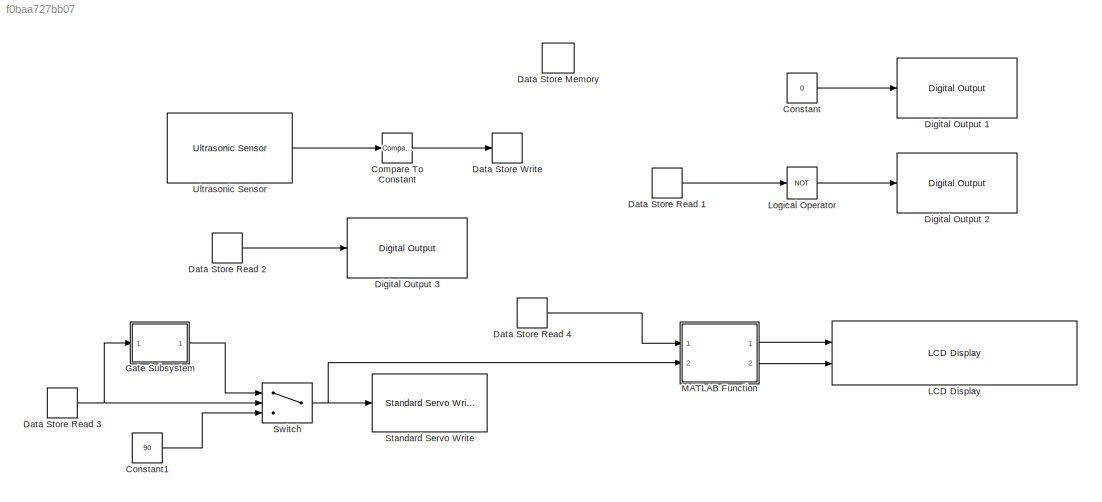
MODEL slx_f0baa727bb07
KIND model
CONFIG AbsTol = auto
CONFIG EnableMultiTasking = on
CONFIG FixedStep = auto
CONFIG MaxStep = auto
CONFIG MinStep = auto
CONFIG RelTol = 1e-3
CONFIG SampleTimeConstraint = Unconstrained
CONFIG Solver = FixedStepAuto
CONFIG SolverName = FixedStepAuto
CONFIG StartTime = 0.0
CONFIG StopTime = inf
BLOCK [Reference] Compare To Constant  REF=simulink/Logic and Bit
Operations/Compare
To Constant
  Ports = [1, 1]
  SourceBlock = simulink/Logic and Bit\nOperations/Compare\nTo Constant
  SourceProductBaseCode = SL
  SourceProductName = Simulink
  SourceType = Compare To Constant
BLOCK [Constant] Constant
  Value = 0
BLOCK [Constant] Constant1
  Value = 90
BLOCK [DataStoreMemory] Data Store Memory
  ReadBeforeWriteMsg = warning
  ShowAdditionalParam = off
  WriteAfterReadMsg = warning
  WriteAfterWriteMsg = warning
BLOCK [DataStoreRead] Data Store Read 1
  Ports = [0, 1]
BLOCK [DataStoreRead] Data Store Read 2
  Ports = [0, 1]
BLOCK [DataStoreRead] Data Store Read 3
  Ports = [0, 1]
BLOCK [DataStoreRead] Data Store Read 4
  Ports = [0, 1]
BLOCK [DataStoreWrite] Data Store Write
  Ports = [1]
BLOCK [Reference] Digital Output 1  REF=arduinolib/Digital Output
  Ports = [1]
  SourceBlock = arduinolib/Digital Output
  SourceProductBaseCode = ARDUINO
  SourceProductName = Simulink Support Package for Arduino Hardware
  SourceType = Arduino Digital Output
BLOCK [Reference] Digital Output 2  REF=arduinolib/Digital Output
  Ports = [1]
  SourceBlock = arduinolib/Digital Output
  SourceProductBaseCode = ARDUINO
  SourceProductName = Simulink Support Package for Arduino Hardware
  SourceType = Arduino Digital Output
BLOCK [Reference] Digital Output 3  REF=arduinolib/Digital Output
  Ports = [1]
  SourceBlock = arduinolib/Digital Output
  SourceProductBaseCode = ARDUINO
  SourceProductName = Simulink Support Package for Arduino Hardware
  SourceType = Arduino Digital Output
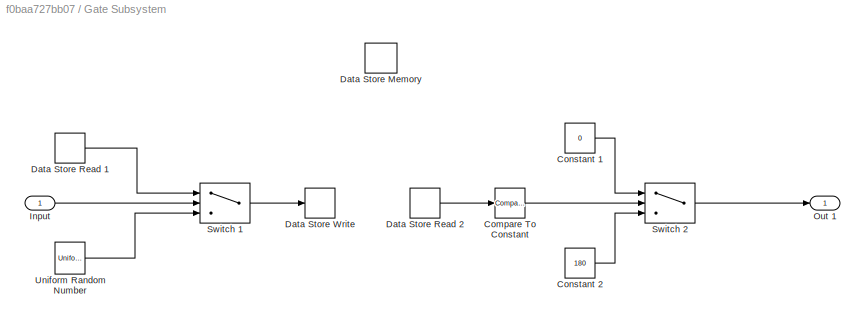
BLOCK [SubSystem] Gate Subsystem
  Ports = [1, 1]
  RequestExecContextInheritance = off
BLOCK [Reference] Gate Subsystem/Compare To Constant  REF=simulink/Logic and Bit
Operations/Compare
To Constant
  Ports = [1, 1]
  SourceBlock = simulink/Logic and Bit\nOperations/Compare\nTo Constant
  SourceProductBaseCode = SL
  SourceProductName = Simulink
  SourceType = Compare To Constant
BLOCK [Constant] Gate Subsystem/Constant 1
  Value = 0
BLOCK [Constant] Gate Subsystem/Constant 2
  Value = 180
BLOCK [DataStoreMemory] Gate Subsystem/Data Store Memory
  DataStoreName = n
  LockScale = on
  OutDataTypeStr = double
  ReadBeforeWriteMsg = warning
  ShowAdditionalParam = off
  WriteAfterReadMsg = warning
  WriteAfterWriteMsg = warning
BLOCK [DataStoreRead] Gate Subsystem/Data Store Read 1
  DataStoreName = n
  Ports = [0, 1]
BLOCK [DataStoreRead] Gate Subsystem/Data Store Read 2
  DataStoreName = n
  Ports = [0, 1]
BLOCK [DataStoreWrite] Gate Subsystem/Data Store Write
  DataStoreName = n
  Ports = [1]
BLOCK [Inport] Gate Subsystem/Input
  IconDisplay = Port number
BLOCK [Outport] Gate Subsystem/Out 1
  IconDisplay = Port number
BLOCK [Switch] Gate Subsystem/Switch 1
  Criteria = u2 > Threshold
  InputSameDT = off
  SaturateOnIntegerOverflow = off
BLOCK [Switch] Gate Subsystem/Switch 2
  Criteria = u2 > Threshold
  InputSameDT = off
  SaturateOnIntegerOverflow = off
BLOCK [UniformRandomNumber] Gate Subsystem/Uniform Random Number
  Minimum = 0
  SampleTime = 1
BLOCK [Reference] LCD Display  REF=LCDlib/LCD Display
  Ports = [2]
  SourceBlock = LCDlib/LCD Display
  SourceProductName = LCD Library
  SourceType = LiquidCrystalDisplay.block.LCD
BLOCK [Logic] Logical Operator
  AllPortsSameDT = off
  Operator = NOT
  OutDataTypeStr = boolean
  Ports = [1, 1]
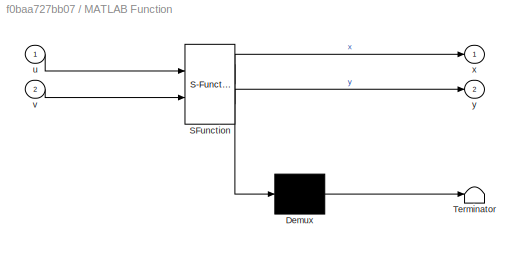
BLOCK [SubSystem] MATLAB Function
  ErrorFcn = Stateflow.Translate.translate
  PermitHierarchicalResolution = ExplicitOnly
  Ports = [2, 2]
  RequestExecContextInheritance = off
  SFBlockType = MATLAB Function
  TreatAsAtomicUnit = on
BLOCK [Demux] MATLAB Function/ Demux 
  Outputs = 1
  Ports = [1, 1]
BLOCK [S-Function] MATLAB Function/ SFunction 
  EnableBusSupport = on
  FunctionName = sf_sfun
  PortCounts = [2 3]
  Ports = [2, 3]
  SFcnIsStateOwnerBlock = off
  SFunctionDeploymentMode = off
  Tag = Stateflow S-Function model 2
BLOCK [Terminator] MATLAB Function/ Terminator 
BLOCK [Inport] MATLAB Function/u
  IconDisplay = Port number
BLOCK [Inport] MATLAB Function/v
  IconDisplay = Port number
  Port = 2
BLOCK [Outport] MATLAB Function/x
  IconDisplay = Port number
BLOCK [Outport] MATLAB Function/y
  IconDisplay = Port number
  Port = 2
BLOCK [Reference] Standard Servo Write  REF=arduinolib/Standard Servo Write
  Ports = [1]
  SourceBlock = arduinolib/Standard Servo Write
  SourceProductBaseCode = ARDUINO
  SourceProductName = Simulink Support Package for Arduino Hardware
  SourceType = Arduino Standard Servo Write
BLOCK [Switch] Switch
  Criteria = u2 > Threshold
  InputSameDT = off
  SaturateOnIntegerOverflow = off
BLOCK [Reference] Ultrasonic Sensor  REF=arduinosensorlib/Ultrasonic Sensor
  Ports = [0, 1]
  SourceBlock = arduinosensorlib/Ultrasonic Sensor
  SourceProductBaseCode = ARDUINO
  SourceProductName = Simulink Support Package for Arduino Hardware
  SourceType = Arduino Ultrasonic Sensor
LINE Compare To Constant:1 -> Data Store Write:1
LINE Constant1:1 -> Switch:3
LINE Constant:1 -> Digital Output 1:1
LINE Data Store Read 1:1 -> Logical Operator:1
LINE Data Store Read 2:1 -> Digital Output 3:1
NET Data Store Read 3:1 -> Gate Subsystem:1, Switch:2
LINE Data Store Read 4:1 -> MATLAB Function:1
LINE Gate Subsystem/Compare To Constant:1 -> Gate Subsystem/Switch 2:2
LINE Gate Subsystem/Constant 1:1 -> Gate Subsystem/Switch 2:1
LINE Gate Subsystem/Constant 2:1 -> Gate Subsystem/Switch 2:3
LINE Gate Subsystem/Data Store Read 1:1 -> Gate Subsystem/Switch 1:1
LINE Gate Subsystem/Data Store Read 2:1 -> Gate Subsystem/Compare To Constant:1
LINE Gate Subsystem/Input:1 -> Gate Subsystem/Switch 1:2
LINE Gate Subsystem/Switch 1:1 -> Gate Subsystem/Data Store Write:1
LINE Gate Subsystem/Switch 2:1 -> Gate Subsystem/Out 1:1
LINE Gate Subsystem/Uniform Random Number:1 -> Gate Subsystem/Switch 1:3
LINE Gate Subsystem:1 -> Switch:1
LINE Logical Operator:1 -> Digital Output 2:1
LINE MATLAB Function:1 -> LCD Display:1
LINE MATLAB Function:2 -> LCD Display:2
NET Switch:1 -> MATLAB Function:2, Standard Servo Write:1
LINE Ultrasonic Sensor:1 -> Compare To Constant:1
note: NET lines group one-source signal fan-out (src -> all destinations, sorted); 1:1 wires keep LINE
CHART MATLAB Function states=1 transitions=1
  STATE_LABEL 'eML_blk_kernel()'
  STATE_LABEL 'SCRIPT:\nfunction [x,y] = fcn(u,v)\nif u==0\n    x = [68 67 32 109 111 116 111 114 32 82 80 77 58 32 32 32];\n    y = [51 48 48 32 32 32 32 32 32 32 32 32 32 32 32 32];\nelse\n    x = [65 108 101 114 116 33 32 32 32 32 32 32 32 32 32 32];\n    if v==0\n        y = [84 117 114 110 105 110 103 32 82 105 103 104 105 32 32 32];\n    else\n        y = [84 117 114 110 105 110 103 32 76 101 102 116 32 32 32 32];\n ...<+11ch>'
